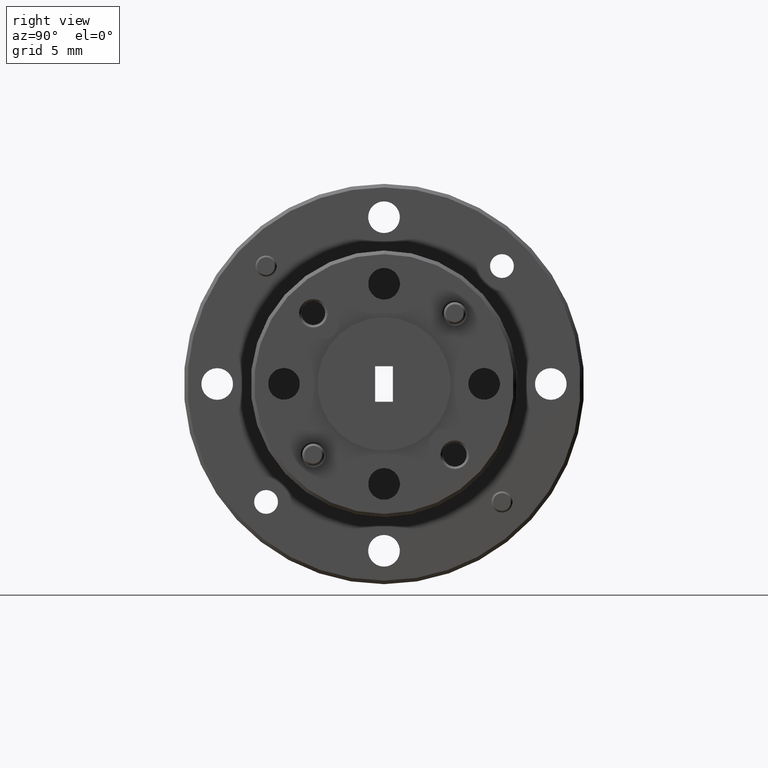
[diagram: clean part render]
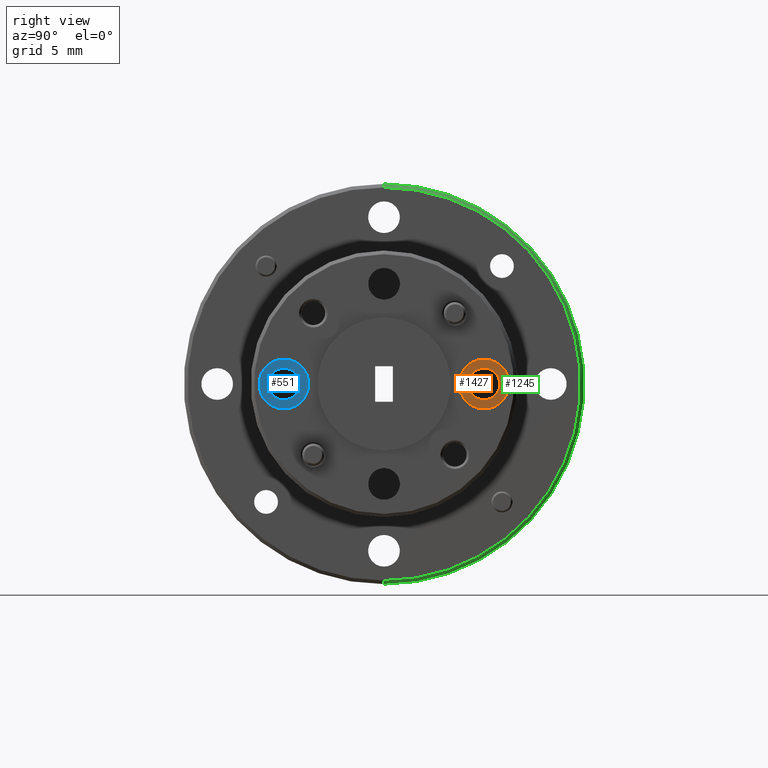
[diagram: same view with three faces highlighted in distinct colors, each labeled with its STEP entity id]
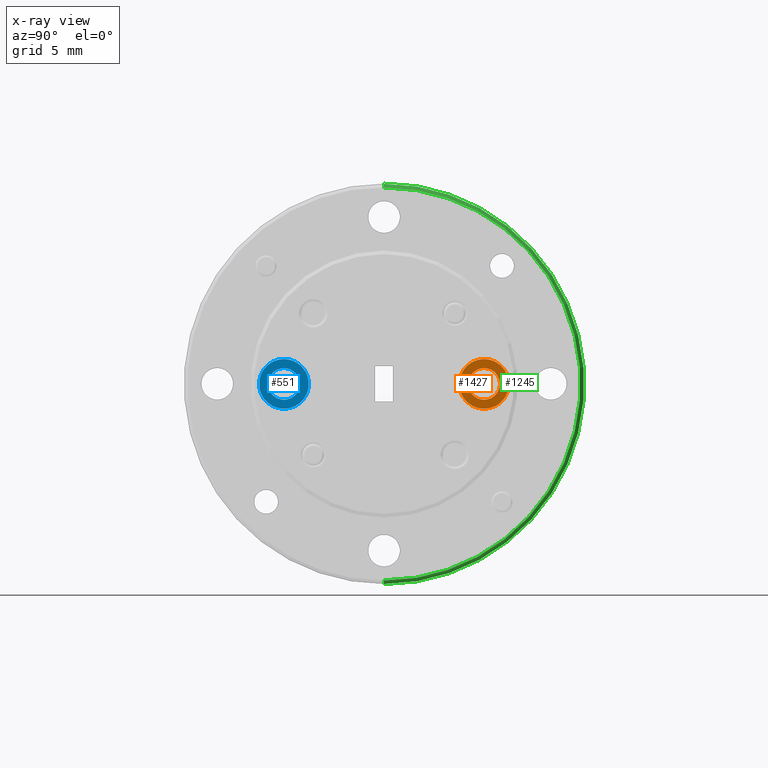
[diagram: x-ray of the same camera — body ghosted, the three highlighted faces saturated]
A machine part, right view with three faces highlighted in distinct colors.
The next image is the same camera in x-ray (body ghosted, the three faces saturated) — at least one of them is partly hidden behind the body in this view.
Their STEP definitions:

[orange] entity #1427 — the highlighted planar face has unit normal (-1, 0, -0).
#183 = DIRECTION ( 'NONE',  ( -1.000000000000000000, 1.598615139904834900E-061, 1.956366136326174500E-050 ) ) ;
#233 = EDGE_CURVE ( 'NONE', #2202, #2866, #3157, .T. ) ;
#237 = DIRECTION ( 'NONE',  ( 0.0000000000000000000, 0.0000000000000000000, -1.000000000000000000 ) ) ;
#297 = CARTESIAN_POINT ( 'NONE',  ( -1.176036104178505900, 1.152392854511768300, 0.2661954922081256600 ) ) ;
#309 = ORIENTED_EDGE ( 'NONE', *, *, #2108, .T. ) ;
#482 = DIRECTION ( 'NONE',  ( 0.0000000000000000000, 0.0000000000000000000, -1.000000000000000000 ) ) ;
#639 = CARTESIAN_POINT ( 'NONE',  ( -1.176036104178505900, 1.152392854511768300, 0.3361954922081256700 ) ) ;
#850 = CARTESIAN_POINT ( 'NONE',  ( -1.176036104178505900, 1.152392854511768300, 0.2216954922081259300 ) ) ;
#886 = CIRCLE ( 'NONE', #2290, 0.07000000000000000700 ) ;
#939 = CARTESIAN_POINT ( 'NONE',  ( -1.176036104178505900, 1.152392854511768300, 0.3106954922081254200 ) ) ;
#1291 = AXIS2_PLACEMENT_3D ( 'NONE', #2870, #2611, #2905 ) ;
#1412 = CARTESIAN_POINT ( 'NONE',  ( -1.176036104178505900, 1.152392854511768300, 0.2661954922081256600 ) ) ;
#1421 = CARTESIAN_POINT ( 'NONE',  ( -1.176036104178505900, 1.152392854511768300, 0.2661954922081256600 ) ) ;
#1427 = ADVANCED_FACE ( 'NONE', ( #3769, #1677 ), #3195, .F. ) ;
#1441 = DIRECTION ( 'NONE',  ( -1.000000000000000000, 1.598615139904834900E-061, 1.956366136326174500E-050 ) ) ;
#1562 = ORIENTED_EDGE ( 'NONE', *, *, #3865, .F. ) ;
#1677 = FACE_OUTER_BOUND ( 'NONE', #2417, .T. ) ;
#1994 = AXIS2_PLACEMENT_3D ( 'NONE', #297, #2175, #3047 ) ;
#2069 = EDGE_CURVE ( 'NONE', #3475, #2076, #886, .T. ) ;
#2076 = VERTEX_POINT ( 'NONE', #2328 ) ;
#2108 = EDGE_CURVE ( 'NONE', #2866, #2202, #2707, .T. ) ;
#2175 = DIRECTION ( 'NONE',  ( -1.000000000000000000, 1.598615139904834900E-061, 1.956366136326174500E-050 ) ) ;
#2202 = VERTEX_POINT ( 'NONE', #850 ) ;
#2222 = ORIENTED_EDGE ( 'NONE', *, *, #233, .T. ) ;
#2290 = AXIS2_PLACEMENT_3D ( 'NONE', #2893, #2314, #2630 ) ;
#2314 = DIRECTION ( 'NONE',  ( -1.000000000000000000, 1.598615139904834900E-061, 1.956366136326174500E-050 ) ) ;
#2328 = CARTESIAN_POINT ( 'NONE',  ( -1.176036104178505900, 1.152392854511768300, 0.1961954922081256500 ) ) ;
#2338 = ORIENTED_EDGE ( 'NONE', *, *, #2069, .F. ) ;
#2417 = EDGE_LOOP ( 'NONE', ( #1562, #2338 ) ) ;
#2611 = DIRECTION ( 'NONE',  ( -1.000000000000000000, 1.598615139904834900E-061, -1.956366136326174300E-050 ) ) ;
#2630 = DIRECTION ( 'NONE',  ( 0.0000000000000000000, 0.0000000000000000000, -1.000000000000000000 ) ) ;
#2678 = AXIS2_PLACEMENT_3D ( 'NONE', #1421, #183, #482 ) ;
#2707 = CIRCLE ( 'NONE', #2678, 0.04449999999999972000 ) ;
#2866 = VERTEX_POINT ( 'NONE', #939 ) ;
#2870 = CARTESIAN_POINT ( 'NONE',  ( -1.176036104178505900, 1.152392854511768300, 0.2661954922081256600 ) ) ;
#2893 = CARTESIAN_POINT ( 'NONE',  ( -1.176036104178505900, 1.152392854511768300, 0.2661954922081256600 ) ) ;
#2905 = DIRECTION ( 'NONE',  ( -1.956366136326174300E-050, 0.0000000000000000000, 1.000000000000000000 ) ) ;
#3034 = EDGE_LOOP ( 'NONE', ( #2222, #309 ) ) ;
#3047 = DIRECTION ( 'NONE',  ( 0.0000000000000000000, 0.0000000000000000000, -1.000000000000000000 ) ) ;
#3123 = AXIS2_PLACEMENT_3D ( 'NONE', #1412, #1441, #237 ) ;
#3157 = CIRCLE ( 'NONE', #3123, 0.04449999999999972000 ) ;
#3195 = PLANE ( 'NONE',  #1291 ) ;
#3475 = VERTEX_POINT ( 'NONE', #639 ) ;
#3769 = FACE_BOUND ( 'NONE', #3034, .T. ) ;
#3865 = EDGE_CURVE ( 'NONE', #2076, #3475, #3867, .T. ) ;
#3867 = CIRCLE ( 'NONE', #1994, 0.07000000000000000700 ) ;

[blue] entity #551 — the highlighted planar face has unit normal (-1, 0, -0).
#54 = CIRCLE ( 'NONE', #530, 0.07000000000000000700 ) ;
#277 = DIRECTION ( 'NONE',  ( -1.000000000000000000, 1.598615139904834900E-061, 1.956366136326174500E-050 ) ) ;
#530 = AXIS2_PLACEMENT_3D ( 'NONE', #631, #3374, #3674 ) ;
#551 = ADVANCED_FACE ( 'NONE', ( #1150, #2593 ), #1911, .F. ) ;
#624 = DIRECTION ( 'NONE',  ( -1.000000000000000000, 1.598615139904834900E-061, -1.956366136326174300E-050 ) ) ;
#631 = CARTESIAN_POINT ( 'NONE',  ( -1.176036104178505900, 0.5898928545117680900, 0.2661954922081256600 ) ) ;
#638 = ORIENTED_EDGE ( 'NONE', *, *, #2867, .T. ) ;
#1100 = EDGE_LOOP ( 'NONE', ( #1737, #2271 ) ) ;
#1111 = EDGE_CURVE ( 'NONE', #3885, #1295, #54, .T. ) ;
#1150 = FACE_BOUND ( 'NONE', #2402, .T. ) ;
#1235 = ORIENTED_EDGE ( 'NONE', *, *, #2814, .T. ) ;
#1239 = DIRECTION ( 'NONE',  ( 0.0000000000000000000, 0.0000000000000000000, -1.000000000000000000 ) ) ;
#1265 = DIRECTION ( 'NONE',  ( -1.000000000000000000, 1.598615139904834900E-061, 1.956366136326174500E-050 ) ) ;
#1295 = VERTEX_POINT ( 'NONE', #1943 ) ;
#1343 = EDGE_CURVE ( 'NONE', #1295, #3885, #3092, .T. ) ;
#1455 = CIRCLE ( 'NONE', #2123, 0.04449999999999972000 ) ;
#1504 = CIRCLE ( 'NONE', #1546, 0.04449999999999972000 ) ;
#1530 = CARTESIAN_POINT ( 'NONE',  ( -1.176036104178505900, 0.5898928545117680900, 0.1961954922081256500 ) ) ;
#1543 = VERTEX_POINT ( 'NONE', #3794 ) ;
#1546 = AXIS2_PLACEMENT_3D ( 'NONE', #3357, #277, #1681 ) ;
#1608 = CARTESIAN_POINT ( 'NONE',  ( -1.176036104178505900, 0.5898928545117680900, 0.2661954922081256600 ) ) ;
#1681 = DIRECTION ( 'NONE',  ( 0.0000000000000000000, 0.0000000000000000000, -1.000000000000000000 ) ) ;
#1737 = ORIENTED_EDGE ( 'NONE', *, *, #1111, .F. ) ;
#1773 = CARTESIAN_POINT ( 'NONE',  ( -1.176036104178505900, 0.5898928545117680900, 0.3106954922081254200 ) ) ;
#1784 = AXIS2_PLACEMENT_3D ( 'NONE', #1608, #624, #2760 ) ;
#1911 = PLANE ( 'NONE',  #1784 ) ;
#1943 = CARTESIAN_POINT ( 'NONE',  ( -1.176036104178505900, 0.5898928545117680900, 0.3361954922081256700 ) ) ;
#2123 = AXIS2_PLACEMENT_3D ( 'NONE', #3348, #1265, #1239 ) ;
#2271 = ORIENTED_EDGE ( 'NONE', *, *, #1343, .F. ) ;
#2331 = DIRECTION ( 'NONE',  ( -1.000000000000000000, 1.598615139904834900E-061, 1.956366136326174500E-050 ) ) ;
#2402 = EDGE_LOOP ( 'NONE', ( #638, #1235 ) ) ;
#2593 = FACE_OUTER_BOUND ( 'NONE', #1100, .T. ) ;
#2623 = CARTESIAN_POINT ( 'NONE',  ( -1.176036104178505900, 0.5898928545117680900, 0.2661954922081256600 ) ) ;
#2760 = DIRECTION ( 'NONE',  ( -1.956366136326174300E-050, 0.0000000000000000000, 1.000000000000000000 ) ) ;
#2814 = EDGE_CURVE ( 'NONE', #3795, #1543, #1504, .T. ) ;
#2867 = EDGE_CURVE ( 'NONE', #1543, #3795, #1455, .T. ) ;
#3092 = CIRCLE ( 'NONE', #3204, 0.07000000000000000700 ) ;
#3204 = AXIS2_PLACEMENT_3D ( 'NONE', #2623, #2331, #3219 ) ;
#3219 = DIRECTION ( 'NONE',  ( 0.0000000000000000000, 0.0000000000000000000, -1.000000000000000000 ) ) ;
#3348 = CARTESIAN_POINT ( 'NONE',  ( -1.176036104178505900, 0.5898928545117680900, 0.2661954922081256600 ) ) ;
#3357 = CARTESIAN_POINT ( 'NONE',  ( -1.176036104178505900, 0.5898928545117680900, 0.2661954922081256600 ) ) ;
#3374 = DIRECTION ( 'NONE',  ( -1.000000000000000000, 1.598615139904834900E-061, 1.956366136326174500E-050 ) ) ;
#3674 = DIRECTION ( 'NONE',  ( 0.0000000000000000000, 0.0000000000000000000, -1.000000000000000000 ) ) ;
#3794 = CARTESIAN_POINT ( 'NONE',  ( -1.176036104178505900, 0.5898928545117680900, 0.2216954922081259300 ) ) ;
#3795 = VERTEX_POINT ( 'NONE', #1773 ) ;
#3885 = VERTEX_POINT ( 'NONE', #1530 ) ;

[green] entity #1245 — the highlighted conical surface has half-angle 45 deg.
#45 = VECTOR ( 'NONE', #3260, 39.37007874015748100 ) ;
#103 = DIRECTION ( 'NONE',  ( 1.000000000000000000, -1.598615139904834900E-061, -1.956366136326174500E-050 ) ) ;
#318 = LINE ( 'NONE', #3387, #458 ) ;
#356 = CARTESIAN_POINT ( 'NONE',  ( -1.966036104178505900, 0.8711428545117682100, 0.8186954922081255400 ) ) ;
#458 = VECTOR ( 'NONE', #3642, 39.37007874015748100 ) ;
#570 = EDGE_CURVE ( 'NONE', #1344, #1753, #1989, .T. ) ;
#921 = ORIENTED_EDGE ( 'NONE', *, *, #570, .T. ) ;
#981 = CARTESIAN_POINT ( 'NONE',  ( -1.976036104178506200, 0.8711428545117682100, 0.2661954922081256600 ) ) ;
#1178 = LINE ( 'NONE', #2115, #45 ) ;
#1245 = ADVANCED_FACE ( 'NONE', ( #2576 ), #3358, .T. ) ;
#1316 = DIRECTION ( 'NONE',  ( 0.0000000000000000000, 0.0000000000000000000, 1.000000000000000000 ) ) ;
#1344 = VERTEX_POINT ( 'NONE', #3509 ) ;
#1378 = ORIENTED_EDGE ( 'NONE', *, *, #3814, .T. ) ;
#1420 = DIRECTION ( 'NONE',  ( 0.0000000000000000000, 0.0000000000000000000, 1.000000000000000000 ) ) ;
#1496 = CARTESIAN_POINT ( 'NONE',  ( -1.976036104178506200, 0.8711428545117682100, 0.8286954922081257700 ) ) ;
#1675 = EDGE_CURVE ( 'NONE', #2475, #1753, #1178, .T. ) ;
#1753 = VERTEX_POINT ( 'NONE', #1496 ) ;
#1760 = ORIENTED_EDGE ( 'NONE', *, *, #2898, .T. ) ;
#1797 = CARTESIAN_POINT ( 'NONE',  ( -1.966036104178505900, 0.8711428545117682100, 0.2661954922081256600 ) ) ;
#1912 = AXIS2_PLACEMENT_3D ( 'NONE', #1797, #3237, #1420 ) ;
#1989 = CIRCLE ( 'NONE', #2458, 0.5625000000000001100 ) ;
#2115 = CARTESIAN_POINT ( 'NONE',  ( -1.976036104178506200, 0.8711428545117682100, 0.8286954922081257700 ) ) ;
#2458 = AXIS2_PLACEMENT_3D ( 'NONE', #2531, #103, #1316 ) ;
#2475 = VERTEX_POINT ( 'NONE', #356 ) ;
#2531 = CARTESIAN_POINT ( 'NONE',  ( -1.976036104178506200, 0.8711428545117682100, 0.2661954922081256600 ) ) ;
#2535 = CARTESIAN_POINT ( 'NONE',  ( -1.966036104178505900, 0.8711428545117682100, -0.2863045077918742700 ) ) ;
#2574 = DIRECTION ( 'NONE',  ( -1.000000000000000000, 0.0000000000000000000, 0.0000000000000000000 ) ) ;
#2576 = FACE_OUTER_BOUND ( 'NONE', #3191, .T. ) ;
#2733 = VERTEX_POINT ( 'NONE', #2535 ) ;
#2857 = DIRECTION ( 'NONE',  ( 0.0000000000000000000, 0.0000000000000000000, 1.000000000000000000 ) ) ;
#2898 = EDGE_CURVE ( 'NONE', #2733, #1344, #318, .T. ) ;
#3107 = ORIENTED_EDGE ( 'NONE', *, *, #1675, .F. ) ;
#3191 = EDGE_LOOP ( 'NONE', ( #1378, #1760, #921, #3107 ) ) ;
#3225 = CIRCLE ( 'NONE', #1912, 0.5524999999999998800 ) ;
#3237 = DIRECTION ( 'NONE',  ( -1.000000000000000000, 0.0000000000000000000, 0.0000000000000000000 ) ) ;
#3260 = DIRECTION ( 'NONE',  ( -0.7071067811865475700, 0.0000000000000000000, 0.7071067811865474600 ) ) ;
#3358 = CONICAL_SURFACE ( 'NONE', #3840, 0.5625000000000001100, 0.7853981633974482800 ) ;
#3387 = CARTESIAN_POINT ( 'NONE',  ( -1.976036104178506200, 0.8711428545117683200, -0.2963045077918743900 ) ) ;
#3509 = CARTESIAN_POINT ( 'NONE',  ( -1.976036104178506200, 0.8711428545117683200, -0.2963045077918745100 ) ) ;
#3642 = DIRECTION ( 'NONE',  ( -0.7071067811865475700, 8.659560562354931600E-017, -0.7071067811865474600 ) ) ;
#3814 = EDGE_CURVE ( 'NONE', #2475, #2733, #3225, .T. ) ;
#3840 = AXIS2_PLACEMENT_3D ( 'NONE', #981, #2574, #2857 ) ;